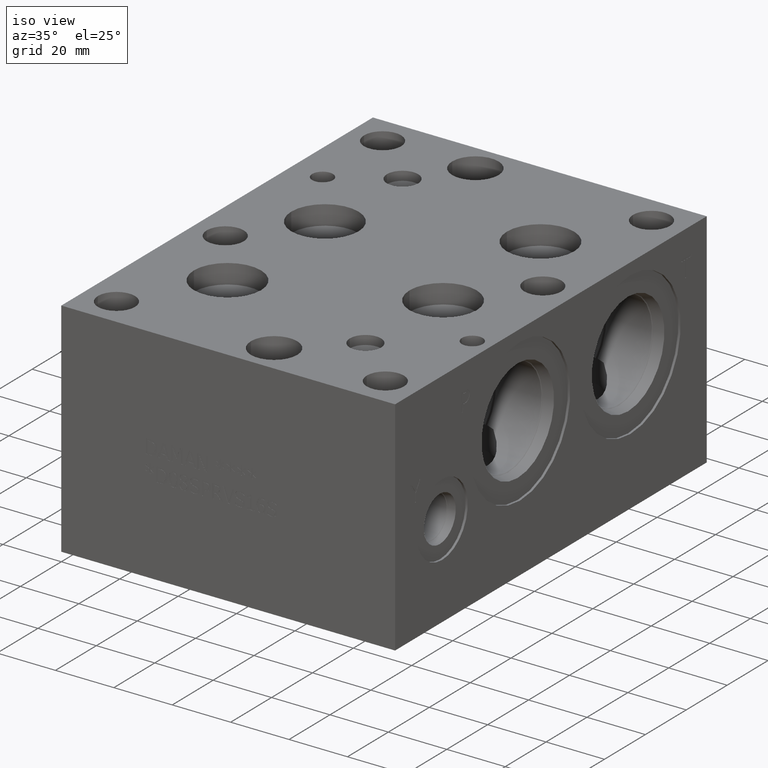
[diagram: clean part render]
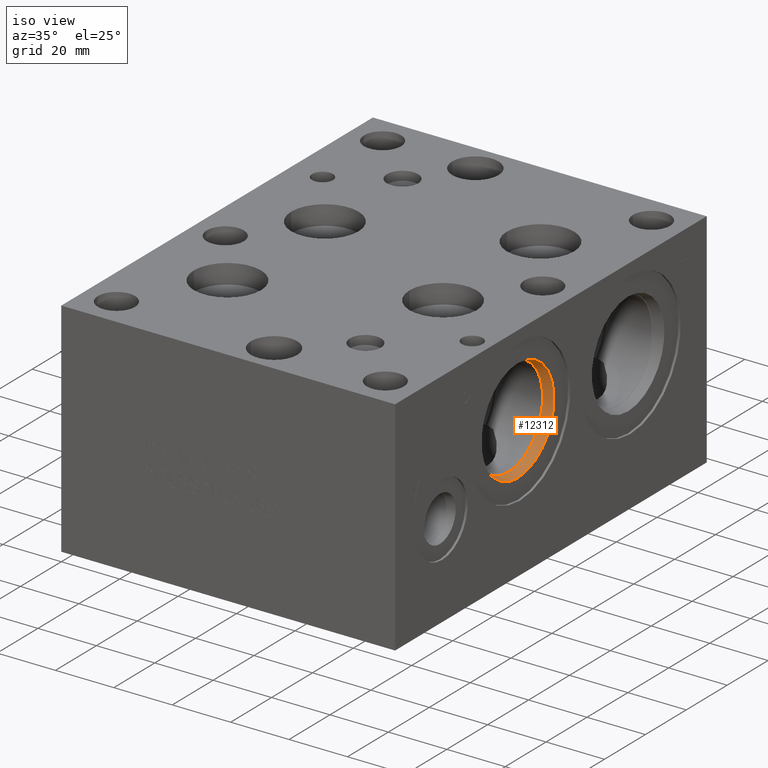
[diagram: same view with one face highlighted and labeled with its STEP entity id]
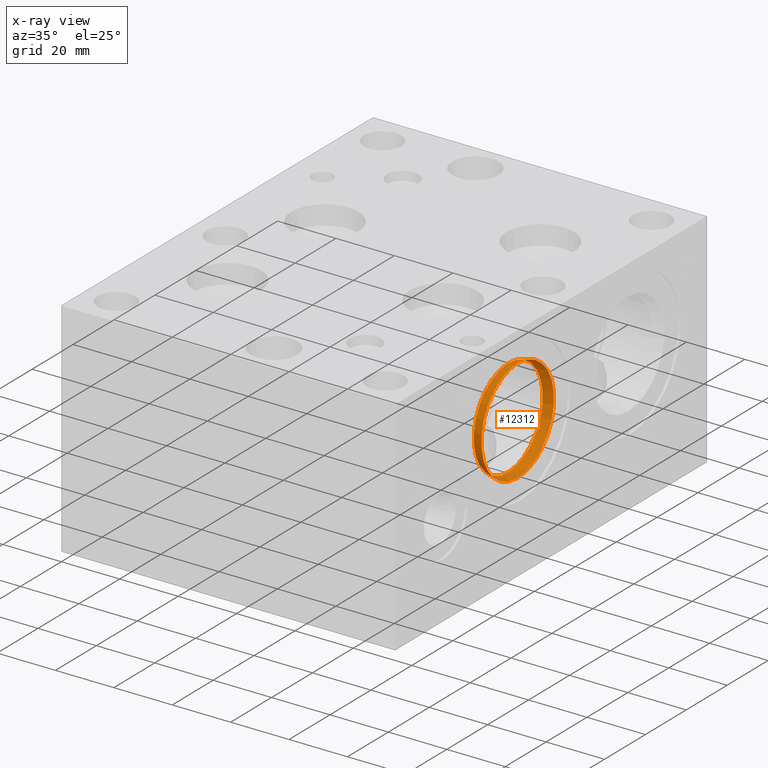
[diagram: x-ray of the same camera — body ghosted, the highlighted face saturated]
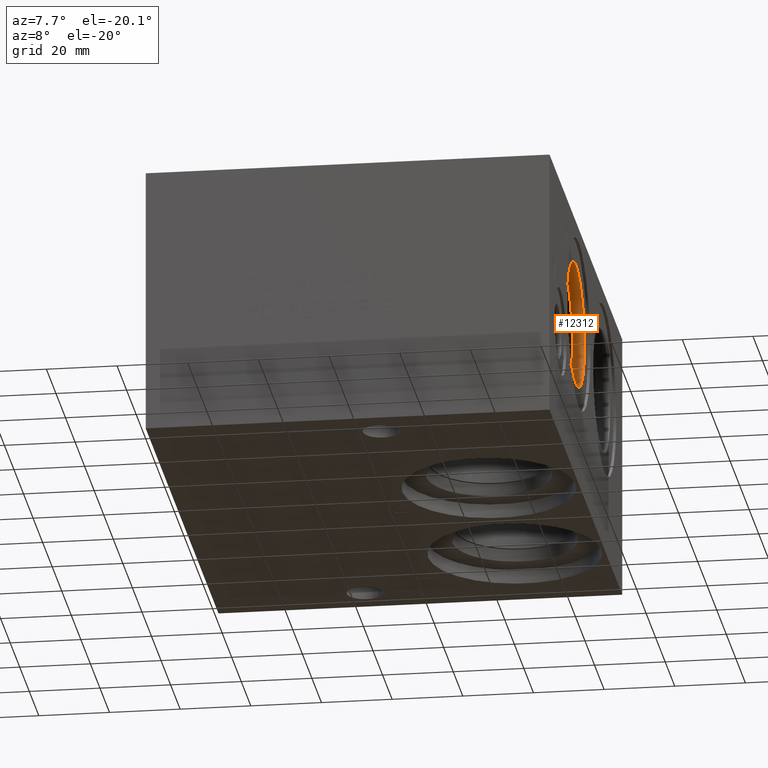
[diagram: same view with one face highlighted and labeled with its STEP entity id]
A machine part, iso view. The second image highlights one B-rep face of the part: STEP entity #12312.
The next image is the same camera in x-ray: the body ghosted, the highlighted face saturated — about 0% of this face is hidden behind the body in this view.
A second angle (auxiliary view) of the same face is appended — the face is thin or edge-on in the first view.
In plain terms, the highlighted conical surface has half-angle 15 deg.
Its self-contained STEP definition (entity closure, byte-faithful):
#32=CONICAL_SURFACE('',#12886,17.31645,0.261799389532319);
#228=CIRCLE('',#12884,17.7546);
#229=CIRCLE('',#12885,17.7546);
#230=CIRCLE('',#12887,16.8783);
#231=CIRCLE('',#12888,16.8783);
#1382=FACE_OUTER_BOUND('',#2078,.T.);
#2078=EDGE_LOOP('',(#10540,#10541,#10542,#10543,#10544,#10545));
#3249=LINE('',#21031,#4354);
#4354=VECTOR('',#15099,17.31645);
#5764=VERTEX_POINT('',#21025);
#5765=VERTEX_POINT('',#21026);
#5766=VERTEX_POINT('',#21030);
#5767=VERTEX_POINT('',#21032);
#7421=EDGE_CURVE('',#5764,#5765,#228,.T.);
#7422=EDGE_CURVE('',#5765,#5764,#229,.T.);
#7423=EDGE_CURVE('',#5765,#5766,#3249,.T.);
#7424=EDGE_CURVE('',#5766,#5767,#230,.T.);
#7425=EDGE_CURVE('',#5767,#5766,#231,.T.);
#10540=ORIENTED_EDGE('',*,*,#7421,.F.);
#10541=ORIENTED_EDGE('',*,*,#7422,.F.);
#10542=ORIENTED_EDGE('',*,*,#7423,.T.);
#10543=ORIENTED_EDGE('',*,*,#7424,.T.);
#10544=ORIENTED_EDGE('',*,*,#7425,.T.);
#10545=ORIENTED_EDGE('',*,*,#7423,.F.);
#12312=ADVANCED_FACE('',(#1382),#32,.F.);
#12884=AXIS2_PLACEMENT_3D('',#21027,#15093,#15094);
#12885=AXIS2_PLACEMENT_3D('',#21028,#15095,#15096);
#12886=AXIS2_PLACEMENT_3D('',#21029,#15097,#15098);
#12887=AXIS2_PLACEMENT_3D('',#21033,#15100,#15101);
#12888=AXIS2_PLACEMENT_3D('',#21034,#15102,#15103);
#15093=DIRECTION('center_axis',(-1.,0.,0.));
#15094=DIRECTION('ref_axis',(0.,0.,1.));
#15095=DIRECTION('center_axis',(-1.,0.,0.));
#15096=DIRECTION('ref_axis',(0.,0.,1.));
#15097=DIRECTION('center_axis',(1.,0.,0.));
#15098=DIRECTION('ref_axis',(0.,0.,-1.));
#15099=DIRECTION('',(-0.965925825840491,-3.16961917193374E-17,-0.258819046776634));
#15100=DIRECTION('center_axis',(-1.,0.,0.));
#15101=DIRECTION('ref_axis',(0.,0.,1.));
#15102=DIRECTION('center_axis',(-1.,0.,0.));
#15103=DIRECTION('ref_axis',(0.,0.,1.));
#21025=CARTESIAN_POINT('',(113.5126,61.1124,29.8704));
#21026=CARTESIAN_POINT('',(113.5126,61.1124,65.3796));
#21027=CARTESIAN_POINT('Origin',(113.5126,61.1124,47.625));
#21028=CARTESIAN_POINT('Origin',(113.5126,61.1124,47.625));
#21029=CARTESIAN_POINT('Origin',(111.87740195,61.1124,47.625));
#21030=CARTESIAN_POINT('',(110.2422039,61.1124,64.5033));
#21031=CARTESIAN_POINT('',(111.87740195,61.1124,64.94145));
#21032=CARTESIAN_POINT('',(110.2422039,61.1124,30.7467));
#21033=CARTESIAN_POINT('Origin',(110.2422039,61.1124,47.625));
#21034=CARTESIAN_POINT('Origin',(110.2422039,61.1124,47.625));